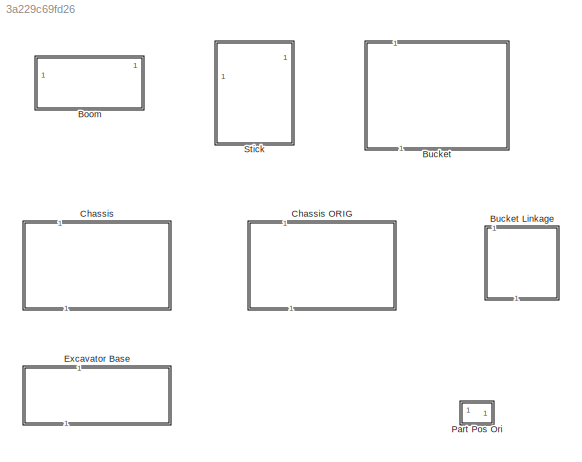
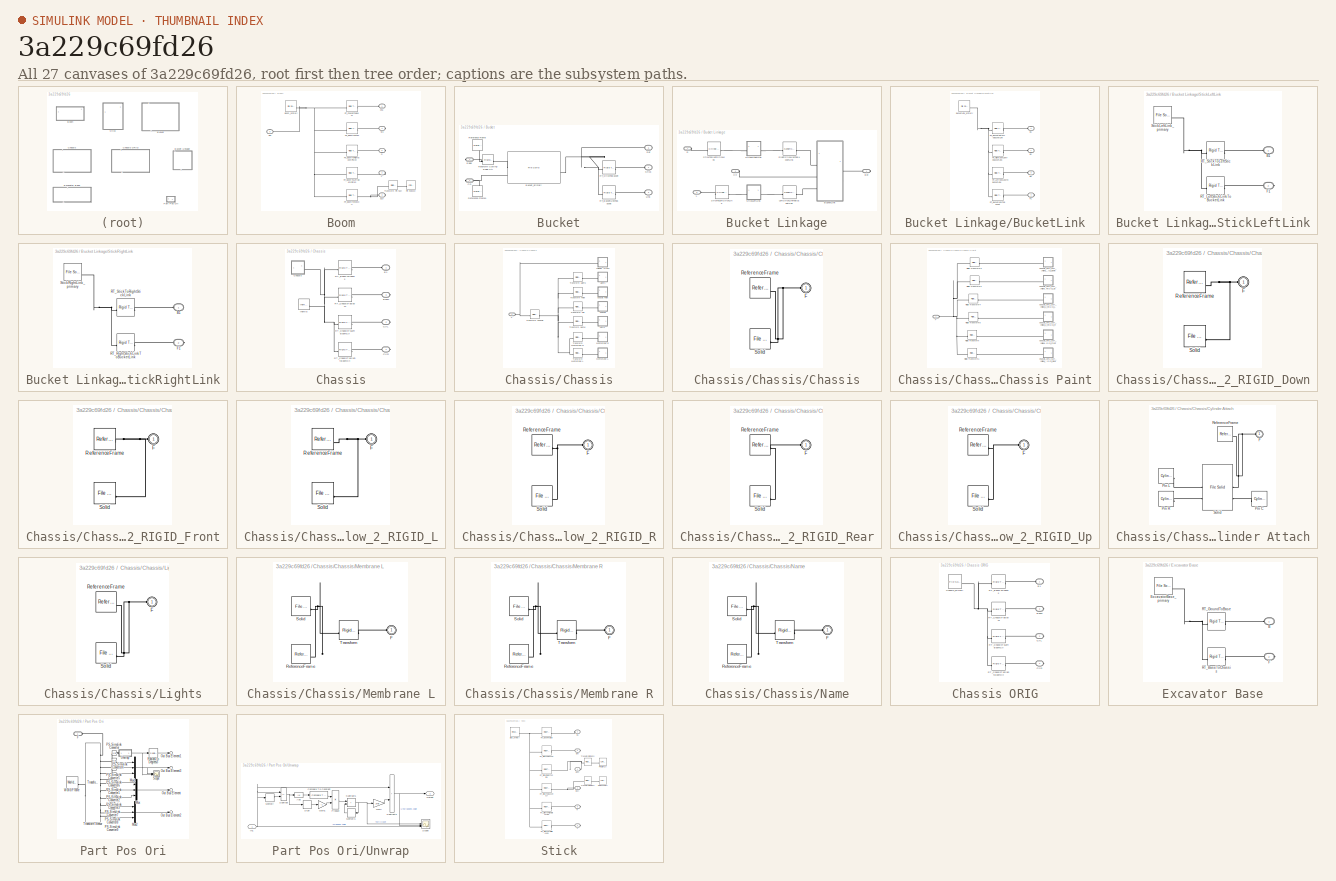
[diagram: thumbnail index - all 27 canvases of the model, root first then tree order]
MODEL slx_3a229c69fd26
KIND library
CONFIG SolverName = VariableStepAuto
BLOCK [SubSystem] Boom
  Tag = FF941BC7-23B6-8A4E-AE2C-D7583C913694
BLOCK [Reference] Boom/Boom_primary  REF=sm_lib/Body Elements/File Solid
  SourceBlock = sm_lib/Body Elements/File Solid
  SourceType = File Solid
BLOCK [PMIOPort] Boom/Cha
  Side = Left
BLOCK [PMIOPort] Boom/L
  Port = 2
  Side = Right
BLOCK [Reference] Boom/Pin StickCyl  REF=sm_lib/Body Elements/Cylindrical Solid
  SourceBlock = sm_lib/Body Elements/Cylindrical Solid
  SourceType = Cylindrical Solid
BLOCK [PMIOPort] Boom/R
  Port = 5
  Side = Right
BLOCK [Reference] Boom/RT_BoomToLeftBoomPiston  REF=sm_lib/Frames and
Transforms/Rigid
Transform
  SourceBlock = sm_lib/Frames and\nTransforms/Rigid\nTransform
  SourceType = Rigid\nTransform
BLOCK [Reference] Boom/RT_BoomToRightBoomPiston  REF=sm_lib/Frames and
Transforms/Rigid
Transform
  SourceBlock = sm_lib/Frames and\nTransforms/Rigid\nTransform
  SourceType = Rigid\nTransform
BLOCK [Reference] Boom/RT_BoomToStick  REF=sm_lib/Frames and
Transforms/Rigid
Transform
  SourceBlock = sm_lib/Frames and\nTransforms/Rigid\nTransform
  SourceType = Rigid\nTransform
BLOCK [Reference] Boom/RT_BoomToStickCyl  REF=sm_lib/Frames and
Transforms/Rigid
Transform
  SourceBlock = sm_lib/Frames and\nTransforms/Rigid\nTransform
  SourceType = Rigid\nTransform
BLOCK [Reference] Boom/RT_ChassisToBoom  REF=sm_lib/Frames and
Transforms/Rigid
Transform
  SourceBlock = sm_lib/Frames and\nTransforms/Rigid\nTransform
  SourceType = Rigid\nTransform
BLOCK [PMIOPort] Boom/Ref
  Port = 6
  Side = Right
BLOCK [PMIOPort] Boom/SCyl
  Port = 3
  Side = Right
BLOCK [PMIOPort] Boom/Stk
  Port = 4
  Side = Right
BLOCK [Reference] Boom/Transform Pin SCyl  REF=sm_lib/Frames and
Transforms/Rigid
Transform
  SourceBlock = sm_lib/Frames and\nTransforms/Rigid\nTransform
  SourceType = Rigid\nTransform
BLOCK [SubSystem] Bucket
  NameLocation = right
  Tag = FF47B028-216B-7042-A7FD-934F60E6CEA6
BLOCK [SubSystem] Bucket Linkage
  NameLocation = right
BLOCK [PMIOPort] Bucket Linkage/Bkt
  Side = Right
BLOCK [SubSystem] Bucket Linkage/BucketLink
  Tag = 8DCE6320-A052-8244-B3A5-A7A50456D327
BLOCK [PMIOPort] Bucket Linkage/BucketLink/B1
  Port = 2
  Side = Left
BLOCK [PMIOPort] Bucket Linkage/BucketLink/B2
  Side = Left
BLOCK [PMIOPort] Bucket Linkage/BucketLink/B3
  Port = 3
  Side = Left
BLOCK [Reference] Bucket Linkage/BucketLink/BucketLink_primary  REF=sm_lib/Body Elements/File Solid
  SourceBlock = sm_lib/Body Elements/File Solid
  SourceType = File Solid
BLOCK [PMIOPort] Bucket Linkage/BucketLink/F1
  Port = 4
  Side = Right
BLOCK [Reference] Bucket Linkage/BucketLink/RT_BucketLinkToBucket  REF=sm_lib/Frames and
Transforms/Rigid
Transform
  SourceBlock = sm_lib/Frames and\nTransforms/Rigid\nTransform
  SourceType = Rigid\nTransform
BLOCK [Reference] Bucket Linkage/BucketLink/RT_BucketPistonToBucketLink  REF=sm_lib/Frames and
Transforms/Rigid
Transform
  SourceBlock = sm_lib/Frames and\nTransforms/Rigid\nTransform
  SourceType = Rigid\nTransform
BLOCK [Reference] Bucket Linkage/BucketLink/RT_LeftStickLinkToBucketLink  REF=sm_lib/Frames and
Transforms/Rigid
Transform
  SourceBlock = sm_lib/Frames and\nTransforms/Rigid\nTransform
  SourceType = Rigid\nTransform
BLOCK [Reference] Bucket Linkage/BucketLink/RT_RightStickLinkToBucketLink  REF=sm_lib/Frames and
Transforms/Rigid
Transform
  SourceBlock = sm_lib/Frames and\nTransforms/Rigid\nTransform
  SourceType = Rigid\nTransform
BLOCK [PMIOPort] Bucket Linkage/Cyl
  Port = 4
  Side = Left
BLOCK [PMIOPort] Bucket Linkage/L
  Port = 3
  Side = Left
BLOCK [Reference] Bucket Linkage/LeftStickLinkToBucketLink  REF=sm_lib/Joints/Spherical
Joint
  SourceBlock = sm_lib/Joints/Spherical\nJoint
  SourceType = Spherical\nJoint
BLOCK [PMIOPort] Bucket Linkage/R
  Port = 2
  Side = Left
BLOCK [Reference] Bucket Linkage/RightStickLinkToBucketLink  REF=sm_lib/Joints/Spherical
Joint
  SourceBlock = sm_lib/Joints/Spherical\nJoint
  SourceType = Spherical\nJoint
BLOCK [SubSystem] Bucket Linkage/StickLeftLink
  Tag = A3A8352F-D85E-864A-96A3-EBEF0A949AEF
BLOCK [PMIOPort] Bucket Linkage/StickLeftLink/B1
  Side = Left
BLOCK [PMIOPort] Bucket Linkage/StickLeftLink/F1
  Port = 2
  Side = Right
BLOCK [Reference] Bucket Linkage/StickLeftLink/RT_LeftStickLinkToBucketLink  REF=sm_lib/Frames and
Transforms/Rigid
Transform
  SourceBlock = sm_lib/Frames and\nTransforms/Rigid\nTransform
  SourceType = Rigid\nTransform
BLOCK [Reference] Bucket Linkage/StickLeftLink/RT_StickToLeftStickLink  REF=sm_lib/Frames and
Transforms/Rigid
Transform
  SourceBlock = sm_lib/Frames and\nTransforms/Rigid\nTransform
  SourceType = Rigid\nTransform
BLOCK [Reference] Bucket Linkage/StickLeftLink/StickLeftLink_primary  REF=sm_lib/Body Elements/File Solid
  SourceBlock = sm_lib/Body Elements/File Solid
  SourceType = File Solid
BLOCK [SubSystem] Bucket Linkage/StickRightLink
  Tag = 98B16C75-5A98-C34E-9328-4E7B9631B689
BLOCK [PMIOPort] Bucket Linkage/StickRightLink/B1
  Side = Left
BLOCK [PMIOPort] Bucket Linkage/StickRightLink/F1
  Port = 2
  Side = Right
BLOCK [Reference] Bucket Linkage/StickRightLink/RT_RightStickLinkToBucketLink  REF=sm_lib/Frames and
Transforms/Rigid
Transform
  SourceBlock = sm_lib/Frames and\nTransforms/Rigid\nTransform
  SourceType = Rigid\nTransform
BLOCK [Reference] Bucket Linkage/StickRightLink/RT_StickToRightStickLink  REF=sm_lib/Frames and
Transforms/Rigid
Transform
  SourceBlock = sm_lib/Frames and\nTransforms/Rigid\nTransform
  SourceType = Rigid\nTransform
BLOCK [Reference] Bucket Linkage/StickRightLink/StickRightLink_primary  REF=sm_lib/Body Elements/File Solid
  SourceBlock = sm_lib/Body Elements/File Solid
  SourceType = File Solid
BLOCK [Reference] Bucket Linkage/StickToLeftStickLink  REF=sm_lib/Joints/Cylindrical
Joint
  SourceBlock = sm_lib/Joints/Cylindrical\nJoint
  SourceType = Cylindrical\nJoint
BLOCK [Reference] Bucket Linkage/StickToRightStickLink  REF=sm_lib/Joints/Cylindrical
Joint
  SourceBlock = sm_lib/Joints/Cylindrical\nJoint
  SourceType = Cylindrical\nJoint
BLOCK [Reference] Bucket/Bucket_primary  REF=sm_lib/Body Elements/File Solid
  SourceBlock = sm_lib/Body Elements/File Solid
  SourceType = File Solid
BLOCK [PMIOPort] Bucket/CG
  Port = 4
  Side = Right
BLOCK [PMIOPort] Bucket/Edge
  Port = 3
  Side = Right
BLOCK [PMIOPort] Bucket/Link
  Port = 2
  Side = Left
BLOCK [Reference] Bucket/RT_BucketLinkToBucket  REF=sm_lib/Frames and
Transforms/Rigid
Transform
  SourceBlock = sm_lib/Frames and\nTransforms/Rigid\nTransform
  SourceType = Rigid\nTransform
BLOCK [Reference] Bucket/RT_StickToBucket  REF=sm_lib/Frames and
Transforms/Rigid
Transform
  SourceBlock = sm_lib/Frames and\nTransforms/Rigid\nTransform
  SourceType = Rigid\nTransform
BLOCK [PMIOPort] Bucket/Ref
  Port = 5
  Side = Right
BLOCK [Reference] Bucket/Reference Frame  REF=sm_lib/Frames and
Transforms/Reference
Frame
  NameLocation = left
  SourceBlock = sm_lib/Frames and\nTransforms/Reference\nFrame
  SourceType = Reference\nFrame
BLOCK [Reference] Bucket/Reference Frame1  REF=sm_lib/Frames and
Transforms/Reference
Frame
  NameLocation = right
  SourceBlock = sm_lib/Frames and\nTransforms/Reference\nFrame
  SourceType = Reference\nFrame
BLOCK [PMIOPort] Bucket/Stick
  Side = Left
BLOCK [Reference] Bucket/Transform Cutting Edge Ctr  REF=sm_lib/Frames and
Transforms/Rigid
Transform
  SourceBlock = sm_lib/Frames and\nTransforms/Rigid\nTransform
  SourceType = Rigid\nTransform
BLOCK [SubSystem] Chassis
  NameLocation = right
  Tag = 19F311DB-9E7A-8F4D-82CB-D8DCD5D4899B
BLOCK [SubSystem] Chassis ORIG
  NameLocation = right
  Tag = 19F311DB-9E7A-8F4D-82CB-D8DCD5D4899B
BLOCK [PMIOPort] Chassis ORIG/B1
  Side = Left
BLOCK [PMIOPort] Chassis ORIG/Boom
  Port = 3
  Side = Right
BLOCK [Reference] Chassis ORIG/Chassis_primary  REF=sm_lib/Body Elements/File Solid
  SourceBlock = sm_lib/Body Elements/File Solid
  SourceType = File Solid
BLOCK [PMIOPort] Chassis ORIG/CylL
  Port = 2
  Side = Right
BLOCK [PMIOPort] Chassis ORIG/CylR
  Port = 4
  Side = Right
BLOCK [Reference] Chassis ORIG/RT_BaseToChassis  REF=sm_lib/Frames and
Transforms/Rigid
Transform
  SourceBlock = sm_lib/Frames and\nTransforms/Rigid\nTransform
  SourceType = Rigid\nTransform
BLOCK [Reference] Chassis ORIG/RT_ChassisToBoom  REF=sm_lib/Frames and
Transforms/Rigid
Transform
  SourceBlock = sm_lib/Frames and\nTransforms/Rigid\nTransform
  SourceType = Rigid\nTransform
BLOCK [Reference] Chassis ORIG/RT_ChassisToLeftBoomCyl  REF=sm_lib/Frames and
Transforms/Rigid
Transform
  SourceBlock = sm_lib/Frames and\nTransforms/Rigid\nTransform
  SourceType = Rigid\nTransform
BLOCK [Reference] Chassis ORIG/RT_ChassisToRightBoomCyl  REF=sm_lib/Frames and
Transforms/Rigid
Transform
  SourceBlock = sm_lib/Frames and\nTransforms/Rigid\nTransform
  SourceType = Rigid\nTransform
BLOCK [PMIOPort] Chassis/B1
  Side = Left
BLOCK [PMIOPort] Chassis/Boom
  Port = 3
  Side = Right
BLOCK [SubSystem] Chassis/Chassis
BLOCK [SubSystem] Chassis/Chassis/Chassis
BLOCK [SubSystem] Chassis/Chassis/Chassis Paint
BLOCK [SubSystem] Chassis/Chassis/Chassis Paint/Chassis_ver2_surf_yellow_2_RIGID_Down
BLOCK [PMIOPort] Chassis/Chassis/Chassis Paint/Chassis_ver2_surf_yellow_2_RIGID_Down/F
  Side = Left
BLOCK [Reference] Chassis/Chassis/Chassis Paint/Chassis_ver2_surf_yellow_2_RIGID_Down/ReferenceFrame  REF=sm_lib/Frames and
Transforms/Reference
Frame
  SourceBlock = sm_lib/Frames and\nTransforms/Reference\nFrame
  SourceType = Reference\nFrame
BLOCK [Reference] Chassis/Chassis/Chassis Paint/Chassis_ver2_surf_yellow_2_RIGID_Down/Solid  REF=sm_lib/Body Elements/File Solid
  SourceBlock = sm_lib/Body Elements/File Solid
  SourceType = File Solid
BLOCK [SubSystem] Chassis/Chassis/Chassis Paint/Chassis_ver2_surf_yellow_2_RIGID_Front
BLOCK [PMIOPort] Chassis/Chassis/Chassis Paint/Chassis_ver2_surf_yellow_2_RIGID_Front/F
  Side = Left
BLOCK [Reference] Chassis/Chassis/Chassis Paint/Chassis_ver2_surf_yellow_2_RIGID_Front/ReferenceFrame  REF=sm_lib/Frames and
Transforms/Reference
Frame
  SourceBlock = sm_lib/Frames and\nTransforms/Reference\nFrame
  SourceType = Reference\nFrame
BLOCK [Reference] Chassis/Chassis/Chassis Paint/Chassis_ver2_surf_yellow_2_RIGID_Front/Solid  REF=sm_lib/Body Elements/File Solid
  SourceBlock = sm_lib/Body Elements/File Solid
  SourceType = File Solid
BLOCK [SubSystem] Chassis/Chassis/Chassis Paint/Chassis_ver2_surf_yellow_2_RIGID_L
BLOCK [PMIOPort] Chassis/Chassis/Chassis Paint/Chassis_ver2_surf_yellow_2_RIGID_L/F
  Side = Left
BLOCK [Reference] Chassis/Chassis/Chassis Paint/Chassis_ver2_surf_yellow_2_RIGID_L/ReferenceFrame  REF=sm_lib/Frames and
Transforms/Reference
Frame
  SourceBlock = sm_lib/Frames and\nTransforms/Reference\nFrame
  SourceType = Reference\nFrame
BLOCK [Reference] Chassis/Chassis/Chassis Paint/Chassis_ver2_surf_yellow_2_RIGID_L/Solid  REF=sm_lib/Body Elements/File Solid
  SourceBlock = sm_lib/Body Elements/File Solid
  SourceType = File Solid
BLOCK [SubSystem] Chassis/Chassis/Chassis Paint/Chassis_ver2_surf_yellow_2_RIGID_R
BLOCK [PMIOPort] Chassis/Chassis/Chassis Paint/Chassis_ver2_surf_yellow_2_RIGID_R/F
  Side = Left
BLOCK [Reference] Chassis/Chassis/Chassis Paint/Chassis_ver2_surf_yellow_2_RIGID_R/ReferenceFrame  REF=sm_lib/Frames and
Transforms/Reference
Frame
  SourceBlock = sm_lib/Frames and\nTransforms/Reference\nFrame
  SourceType = Reference\nFrame
BLOCK [Reference] Chassis/Chassis/Chassis Paint/Chassis_ver2_surf_yellow_2_RIGID_R/Solid  REF=sm_lib/Body Elements/File Solid
  SourceBlock = sm_lib/Body Elements/File Solid
  SourceType = File Solid
BLOCK [SubSystem] Chassis/Chassis/Chassis Paint/Chassis_ver2_surf_yellow_2_RIGID_Rear
BLOCK [PMIOPort] Chassis/Chassis/Chassis Paint/Chassis_ver2_surf_yellow_2_RIGID_Rear/F
  Side = Left
BLOCK [Reference] Chassis/Chassis/Chassis Paint/Chassis_ver2_surf_yellow_2_RIGID_Rear/ReferenceFrame  REF=sm_lib/Frames and
Transforms/Reference
Frame
  SourceBlock = sm_lib/Frames and\nTransforms/Reference\nFrame
  SourceType = Reference\nFrame
BLOCK [Reference] Chassis/Chassis/Chassis Paint/Chassis_ver2_surf_yellow_2_RIGID_Rear/Solid  REF=sm_lib/Body Elements/File Solid
  SourceBlock = sm_lib/Body Elements/File Solid
  SourceType = File Solid
BLOCK [SubSystem] Chassis/Chassis/Chassis Paint/Chassis_ver2_surf_yellow_2_RIGID_Up
BLOCK [PMIOPort] Chassis/Chassis/Chassis Paint/Chassis_ver2_surf_yellow_2_RIGID_Up/F
  Side = Left
BLOCK [Reference] Chassis/Chassis/Chassis Paint/Chassis_ver2_surf_yellow_2_RIGID_Up/ReferenceFrame  REF=sm_lib/Frames and
Transforms/Reference
Frame
  SourceBlock = sm_lib/Frames and\nTransforms/Reference\nFrame
  SourceType = Reference\nFrame
BLOCK [Reference] Chassis/Chassis/Chassis Paint/Chassis_ver2_surf_yellow_2_RIGID_Up/Solid  REF=sm_lib/Body Elements/File Solid
  SourceBlock = sm_lib/Body Elements/File Solid
  SourceType = File Solid
BLOCK [PMIOPort] Chassis/Chassis/Chassis Paint/F
  Side = Left
BLOCK [Reference] Chassis/Chassis/Chassis Paint/Rigid Transform  REF=sm_lib/Frames and
Transforms/Rigid
Transform
  SourceBlock = sm_lib/Frames and\nTransforms/Rigid\nTransform
  SourceType = Rigid\nTransform
BLOCK [Reference] Chassis/Chassis/Chassis Paint/Rigid Transform1  REF=sm_lib/Frames and
Transforms/Rigid
Transform
  SourceBlock = sm_lib/Frames and\nTransforms/Rigid\nTransform
  SourceType = Rigid\nTransform
BLOCK [Reference] Chassis/Chassis/Chassis Paint/Rigid Transform2  REF=sm_lib/Frames and
Transforms/Rigid
Transform
  SourceBlock = sm_lib/Frames and\nTransforms/Rigid\nTransform
  SourceType = Rigid\nTransform
BLOCK [Reference] Chassis/Chassis/Chassis Paint/Rigid Transform3  REF=sm_lib/Frames and
Transforms/Rigid
Transform
  SourceBlock = sm_lib/Frames and\nTransforms/Rigid\nTransform
  SourceType = Rigid\nTransform
BLOCK [Reference] Chassis/Chassis/Chassis Paint/Rigid Transform4  REF=sm_lib/Frames and
Transforms/Rigid
Transform
  SourceBlock = sm_lib/Frames and\nTransforms/Rigid\nTransform
  SourceType = Rigid\nTransform
BLOCK [Reference] Chassis/Chassis/Chassis Paint/Rigid Transform5  REF=sm_lib/Frames and
Transforms/Rigid
Transform
  SourceBlock = sm_lib/Frames and\nTransforms/Rigid\nTransform
  SourceType = Rigid\nTransform
BLOCK [PMIOPort] Chassis/Chassis/Chassis/F
  Side = Left
BLOCK [Reference] Chassis/Chassis/Chassis/ReferenceFrame  REF=sm_lib/Frames and
Transforms/Reference
Frame
  SourceBlock = sm_lib/Frames and\nTransforms/Reference\nFrame
  SourceType = Reference\nFrame
BLOCK [Reference] Chassis/Chassis/Chassis/Solid  REF=sm_lib/Body Elements/File Solid
  SourceBlock = sm_lib/Body Elements/File Solid
  SourceType = File Solid
BLOCK [SubSystem] Chassis/Chassis/Cylinder Attach
BLOCK [PMIOPort] Chassis/Chassis/Cylinder Attach/F
  Side = Left
BLOCK [Reference] Chassis/Chassis/Cylinder Attach/Pin C  REF=sm_lib/Body Elements/Cylindrical Solid
  SourceBlock = sm_lib/Body Elements/Cylindrical Solid
  SourceType = Cylindrical Solid
BLOCK [Reference] Chassis/Chassis/Cylinder Attach/Pin L  REF=sm_lib/Body Elements/Cylindrical Solid
  NameLocation = top
  SourceBlock = sm_lib/Body Elements/Cylindrical Solid
  SourceType = Cylindrical Solid
BLOCK [Reference] Chassis/Chassis/Cylinder Attach/Pin R  REF=sm_lib/Body Elements/Cylindrical Solid
  NameLocation = top
  SourceBlock = sm_lib/Body Elements/Cylindrical Solid
  SourceType = Cylindrical Solid
BLOCK [Reference] Chassis/Chassis/Cylinder Attach/ReferenceFrame  REF=sm_lib/Frames and
Transforms/Reference
Frame
  SourceBlock = sm_lib/Frames and\nTransforms/Reference\nFrame
  SourceType = Reference\nFrame
BLOCK [Reference] Chassis/Chassis/Cylinder Attach/Solid  REF=sm_lib/Body Elements/File Solid
  SourceBlock = sm_lib/Body Elements/File Solid
  SourceType = File Solid
BLOCK [PMIOPort] Chassis/Chassis/F
  Side = Left
BLOCK [SubSystem] Chassis/Chassis/Lights
BLOCK [PMIOPort] Chassis/Chassis/Lights/F
  Side = Left
BLOCK [Reference] Chassis/Chassis/Lights/ReferenceFrame  REF=sm_lib/Frames and
Transforms/Reference
Frame
  SourceBlock = sm_lib/Frames and\nTransforms/Reference\nFrame
  SourceType = Reference\nFrame
BLOCK [Reference] Chassis/Chassis/Lights/Solid  REF=sm_lib/Body Elements/File Solid
  SourceBlock = sm_lib/Body Elements/File Solid
  SourceType = File Solid
BLOCK [SubSystem] Chassis/Chassis/Membrane L
BLOCK [PMIOPort] Chassis/Chassis/Membrane L/F
  Side = Left
BLOCK [Reference] Chassis/Chassis/Membrane L/ReferenceFrame  REF=sm_lib/Frames and
Transforms/Reference
Frame
  SourceBlock = sm_lib/Frames and\nTransforms/Reference\nFrame
  SourceType = Reference\nFrame
BLOCK [Reference] Chassis/Chassis/Membrane L/Solid  REF=sm_lib/Body Elements/File Solid
  SourceBlock = sm_lib/Body Elements/File Solid
  SourceType = File Solid
BLOCK [Reference] Chassis/Chassis/Membrane L/Transform  REF=sm_lib/Frames and
Transforms/Rigid
Transform
  SourceBlock = sm_lib/Frames and\nTransforms/Rigid\nTransform
  SourceType = Rigid\nTransform
BLOCK [SubSystem] Chassis/Chassis/Membrane R
BLOCK [PMIOPort] Chassis/Chassis/Membrane R/F
  Side = Left
BLOCK [Reference] Chassis/Chassis/Membrane R/ReferenceFrame  REF=sm_lib/Frames and
Transforms/Reference
Frame
  SourceBlock = sm_lib/Frames and\nTransforms/Reference\nFrame
  SourceType = Reference\nFrame
BLOCK [Reference] Chassis/Chassis/Membrane R/Solid  REF=sm_lib/Body Elements/File Solid
  SourceBlock = sm_lib/Body Elements/File Solid
  SourceType = File Solid
BLOCK [Reference] Chassis/Chassis/Membrane R/Transform  REF=sm_lib/Frames and
Transforms/Rigid
Transform
  SourceBlock = sm_lib/Frames and\nTransforms/Rigid\nTransform
  SourceType = Rigid\nTransform
BLOCK [SubSystem] Chassis/Chassis/Name
BLOCK [PMIOPort] Chassis/Chassis/Name/F
  Side = Left
BLOCK [Reference] Chassis/Chassis/Name/ReferenceFrame  REF=sm_lib/Frames and
Transforms/Reference
Frame
  SourceBlock = sm_lib/Frames and\nTransforms/Reference\nFrame
  SourceType = Reference\nFrame
BLOCK [Reference] Chassis/Chassis/Name/Solid  REF=sm_lib/Body Elements/File Solid
  SourceBlock = sm_lib/Body Elements/File Solid
  SourceType = File Solid
BLOCK [Reference] Chassis/Chassis/Name/Transform  REF=sm_lib/Frames and
Transforms/Rigid
Transform
  SourceBlock = sm_lib/Frames and\nTransforms/Rigid\nTransform
  SourceType = Rigid\nTransform
BLOCK [Reference] Chassis/Chassis/Transform Chassis  REF=sm_lib/Frames and
Transforms/Rigid
Transform
  SourceBlock = sm_lib/Frames and\nTransforms/Rigid\nTransform
  SourceType = Rigid\nTransform
BLOCK [Reference] Chassis/Chassis/Transform Hull  REF=sm_lib/Frames and
Transforms/Rigid
Transform
  SourceBlock = sm_lib/Frames and\nTransforms/Rigid\nTransform
  SourceType = Rigid\nTransform
BLOCK [Reference] Chassis/Chassis/Transform Lights  REF=sm_lib/Frames and
Transforms/Rigid
Transform
  SourceBlock = sm_lib/Frames and\nTransforms/Rigid\nTransform
  SourceType = Rigid\nTransform
BLOCK [Reference] Chassis/Chassis/Transform Membrane L  REF=sm_lib/Frames and
Transforms/Rigid
Transform
  SourceBlock = sm_lib/Frames and\nTransforms/Rigid\nTransform
  SourceType = Rigid\nTransform
BLOCK [Reference] Chassis/Chassis/Transform Membrane R  REF=sm_lib/Frames and
Transforms/Rigid
Transform
  SourceBlock = sm_lib/Frames and\nTransforms/Rigid\nTransform
  SourceType = Rigid\nTransform
BLOCK [Reference] Chassis/Chassis/Transform Name  REF=sm_lib/Frames and
Transforms/Rigid
Transform
  SourceBlock = sm_lib/Frames and\nTransforms/Rigid\nTransform
  SourceType = Rigid\nTransform
BLOCK [Reference] Chassis/Chassis/Transform Paint  REF=sm_lib/Frames and
Transforms/Rigid
Transform
  SourceBlock = sm_lib/Frames and\nTransforms/Rigid\nTransform
  SourceType = Rigid\nTransform
BLOCK [PMIOPort] Chassis/CylL
  Port = 2
  Side = Right
BLOCK [PMIOPort] Chassis/CylR
  Port = 4
  Side = Right
BLOCK [Reference] Chassis/Inertia  REF=sm_lib/Body Elements/Inertia
  SourceBlock = sm_lib/Body Elements/Inertia
  SourceType = Inertia
BLOCK [Reference] Chassis/RT_BaseToChassis  REF=sm_lib/Frames and
Transforms/Rigid
Transform
  SourceBlock = sm_lib/Frames and\nTransforms/Rigid\nTransform
  SourceType = Rigid\nTransform
BLOCK [Reference] Chassis/RT_ChassisToBoom  REF=sm_lib/Frames and
Transforms/Rigid
Transform
  SourceBlock = sm_lib/Frames and\nTransforms/Rigid\nTransform
  SourceType = Rigid\nTransform
BLOCK [Reference] Chassis/RT_ChassisToLeftBoomCyl  REF=sm_lib/Frames and
Transforms/Rigid
Transform
  SourceBlock = sm_lib/Frames and\nTransforms/Rigid\nTransform
  SourceType = Rigid\nTransform
BLOCK [Reference] Chassis/RT_ChassisToRightBoomCyl  REF=sm_lib/Frames and
Transforms/Rigid
Transform
  SourceBlock = sm_lib/Frames and\nTransforms/Rigid\nTransform
  SourceType = Rigid\nTransform
BLOCK [SubSystem] Excavator Base
  NameLocation = right
  Tag = AAA55596-1DB0-4345-9724-6685E48489E2
BLOCK [PMIOPort] Excavator Base/B
  Side = Left
BLOCK [Reference] Excavator Base/ExcavatorBase_primary  REF=sm_lib/Body Elements/File Solid
  SourceBlock = sm_lib/Body Elements/File Solid
  SourceType = File Solid
BLOCK [PMIOPort] Excavator Base/F
  Port = 2
  Side = Right
BLOCK [Reference] Excavator Base/RT_BaseToChassis  REF=sm_lib/Frames and
Transforms/Rigid
Transform
  SourceBlock = sm_lib/Frames and\nTransforms/Rigid\nTransform
  SourceType = Rigid\nTransform
BLOCK [Reference] Excavator Base/RT_GroundToBase  REF=sm_lib/Frames and
Transforms/Rigid
Transform
  SourceBlock = sm_lib/Frames and\nTransforms/Rigid\nTransform
  SourceType = Rigid\nTransform
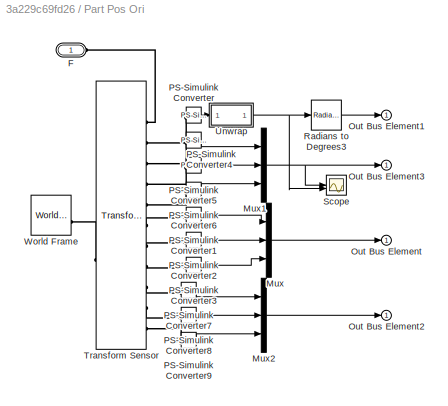
BLOCK [SubSystem] Part Pos Ori
BLOCK [PMIOPort] Part Pos Ori/F
  Side = Left
BLOCK [Mux] Part Pos Ori/Mux
  DisplayOption = bar
  Inputs = 3
BLOCK [Mux] Part Pos Ori/Mux1
  DisplayOption = bar
  Inputs = 3
BLOCK [Mux] Part Pos Ori/Mux2
  DisplayOption = bar
  Inputs = 3
BLOCK [Outport] Part Pos Ori/Out Bus Element
BLOCK [Outport] Part Pos Ori/Out Bus Element1
BLOCK [Outport] Part Pos Ori/Out Bus Element2
BLOCK [Outport] Part Pos Ori/Out Bus Element3
BLOCK [Reference] Part Pos Ori/PS-Simulink Converter  REF=nesl_utility/PS-Simulink
Converter
  SourceBlock = nesl_utility/PS-Simulink\nConverter
  SourceType = PS-Simulink\nConverter
BLOCK [Reference] Part Pos Ori/PS-Simulink Converter1  REF=nesl_utility/PS-Simulink
Converter
  SourceBlock = nesl_utility/PS-Simulink\nConverter
  SourceType = PS-Simulink\nConverter
BLOCK [Reference] Part Pos Ori/PS-Simulink Converter2  REF=nesl_utility/PS-Simulink
Converter
  SourceBlock = nesl_utility/PS-Simulink\nConverter
  SourceType = PS-Simulink\nConverter
BLOCK [Reference] Part Pos Ori/PS-Simulink Converter3  REF=nesl_utility/PS-Simulink
Converter
  SourceBlock = nesl_utility/PS-Simulink\nConverter
  SourceType = PS-Simulink\nConverter
BLOCK [Reference] Part Pos Ori/PS-Simulink Converter4  REF=nesl_utility/PS-Simulink
Converter
  SourceBlock = nesl_utility/PS-Simulink\nConverter
  SourceType = PS-Simulink\nConverter
BLOCK [Reference] Part Pos Ori/PS-Simulink Converter5  REF=nesl_utility/PS-Simulink
Converter
  SourceBlock = nesl_utility/PS-Simulink\nConverter
  SourceType = PS-Simulink\nConverter
BLOCK [Reference] Part Pos Ori/PS-Simulink Converter6  REF=nesl_utility/PS-Simulink
Converter
  SourceBlock = nesl_utility/PS-Simulink\nConverter
  SourceType = PS-Simulink\nConverter
BLOCK [Reference] Part Pos Ori/PS-Simulink Converter7  REF=nesl_utility/PS-Simulink
Converter
  SourceBlock = nesl_utility/PS-Simulink\nConverter
  SourceType = PS-Simulink\nConverter
BLOCK [Reference] Part Pos Ori/PS-Simulink Converter8  REF=nesl_utility/PS-Simulink
Converter
  SourceBlock = nesl_utility/PS-Simulink\nConverter
  SourceType = PS-Simulink\nConverter
BLOCK [Reference] Part Pos Ori/PS-Simulink Converter9  REF=nesl_utility/PS-Simulink
Converter
  SourceBlock = nesl_utility/PS-Simulink\nConverter
  SourceType = PS-Simulink\nConverter
BLOCK [Reference] Part Pos Ori/Radians to Degrees3  REF=simulink_extras/Transformations/Radians
to Degrees
  SourceBlock = simulink_extras/Transformations/Radians\nto Degrees
  SourceType = RadiansToDegrees
BLOCK [Scope] Part Pos Ori/Scope
  ActiveDisplayYMaximum = 0.93117
  ActiveDisplayYMinimum = -1.96597
  DataLoggingVariableName = ScopeData2
  Floating = off
  GraphicalSettings = {"GraphicalSettings":{"LegacySettings":true,"Style":{"Style":{"AxesColor":"[0 0 0]","ChannelNames":["",""],"ColorOrder":"[1 0.909803921568627 0.392156862745098;0.149019607843137 0.549019607843137 0.866666666666667;0.96078431372549 0.466666666666667 0.16078431372549;0.286274509803922 0.858823529411765 0.250980392156863;0.752941176470588 0.36078431372549 0.984313725490196;0.423529411764706 0.9568627...<+488ch>
  LayoutDimensionsString = [2 1]
  MultipleDisplayCache = [{"MaxYLimMag":1.96597,"MaxYLimReal":0.93117,"MinYLimMag":0,"MinYLimReal":-1.96597,"PlotAsMagnitudePhase":false,"ShowGrid":true,"ShowLegend":false,"Title":"%<SignalLabel>","YLabel":""},{"MaxYLimMag":10,"MaxYLimReal":2.23555,"MinYLimMag":0,"MinYLimReal":-4.10914,"PlotAsMagnitudePhase":false,"ShowGrid":true,"ShowLegend":false,"Title":"%<SignalLabel>","YLabel":""}]
  NumInputPorts = 2
  WasSavedAsWebScope = on
  WindowPosition = [990 358 560 420]
BLOCK [Reference] Part Pos Ori/Transform Sensor  REF=sm_lib/Frames and
Transforms/Transform
Sensor
  SourceBlock = sm_lib/Frames and\nTransforms/Transform\nSensor
  SourceType = Transform\nSensor
BLOCK [SubSystem] Part Pos Ori/Unwrap
  NameLocation = top
BLOCK [Abs] Part Pos Ori/Unwrap/Abs
  SaturateOnIntegerOverflow = off
  ZeroCross = off
BLOCK [Reference] Part Pos Ori/Unwrap/Compare To Constant  REF=simulink/Logic and Bit
Operations/Compare
To Constant
  SourceBlock = simulink/Logic and Bit\nOperations/Compare\nTo Constant
  SourceType = Compare To Constant
BLOCK [Gain] Part Pos Ori/Unwrap/Gain
  Gain = 2*pi
BLOCK [Gain] Part Pos Ori/Unwrap/Gain1
  Gain = -1
BLOCK [Inport] Part Pos Ori/Unwrap/In1
BLOCK [Memory] Part Pos Ori/Unwrap/Memory
BLOCK [Memory] Part Pos Ori/Unwrap/Memory1
BLOCK [Outport] Part Pos Ori/Unwrap/Output
BLOCK [Product] Part Pos Ori/Unwrap/Product
BLOCK [Scope] Part Pos Ori/Unwrap/Scope
  ActiveDisplayYMaximum = 0.125
  ActiveDisplayYMinimum = -1.125
  DataLoggingVariableName = ScopeData1
  Floating = off
  GraphicalSettings = {"GraphicalSettings":{"LegacySettings":true,"Style":{"AxesScalingProperties":{"ScaleAxesLimitsAtStop":false},"Style":{"AxesColor":"[0 0 0]","ChannelNames":["","",""],"ColorOrder":"[1 0.909803921568627 0.392156862745098;0.149019607843137 0.549019607843137 0.866666666666667;0.96078431372549 0.466666666666667 0.16078431372549;0.286274509803922 0.858823529411765 0.250980392156863;0.752941176470588 0.3...<+550ch>
  LayoutDimensionsString = [3 1]
  MultipleDisplayCache = [{"MaxYLimMag":1.125,"MaxYLimReal":0.125,"MinYLimMag":0,"MinYLimReal":-1.125,"PlotAsMagnitudePhase":false,"ShowGrid":true,"ShowLegend":false,"Title":"%<SignalLabel>","YLabel":""},{"MaxYLimMag":129.35513,"MaxYLimReal":217.93142,"MinYLimMag":0,"MinYLimReal":-224.2146,"PlotAsMagnitudePhase":false,"ShowGrid":true,"ShowLegend":false,"Title":"%<SignalLabel>","YLabel":""},{"MaxYLimMag":129.35513,"MaxYLim...<+146ch>
  NumInputPorts = 3
  WasSavedAsWebScope = on
  WindowPosition = [990 331 403 447]
BLOCK [Signum] Part Pos Ori/Unwrap/Sign
  ZeroCross = off
BLOCK [Sum] Part Pos Ori/Unwrap/Subtract
  IconShape = rectangular
  Inputs = +-
BLOCK [Sum] Part Pos Ori/Unwrap/Subtract1
  IconShape = rectangular
BLOCK [Sum] Part Pos Ori/Unwrap/Subtract2
  IconShape = rectangular
BLOCK [Reference] Part Pos Ori/World Frame  REF=sm_lib/Frames and
Transforms/World Frame
  SourceBlock = sm_lib/Frames and\nTransforms/World Frame
  SourceType = World Frame
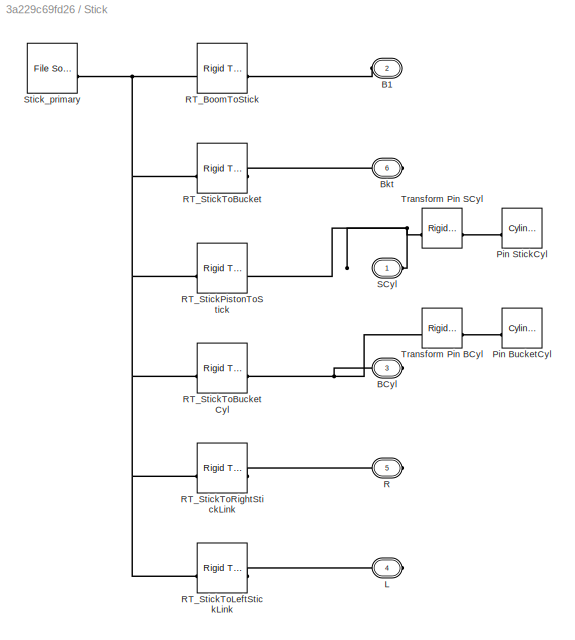
BLOCK [SubSystem] Stick
  Tag = 62A93771-C790-5E4F-BFD2-96C4D317E04B
BLOCK [PMIOPort] Stick/B1
  Port = 2
  Side = Left
BLOCK [PMIOPort] Stick/BCyl
  Port = 3
  Side = Right
BLOCK [PMIOPort] Stick/Bkt
  Port = 6
  Side = Right
BLOCK [PMIOPort] Stick/L
  Port = 4
  Side = Right
BLOCK [Reference] Stick/Pin BucketCyl  REF=sm_lib/Body Elements/Cylindrical Solid
  SourceBlock = sm_lib/Body Elements/Cylindrical Solid
  SourceType = Cylindrical Solid
BLOCK [Reference] Stick/Pin StickCyl  REF=sm_lib/Body Elements/Cylindrical Solid
  SourceBlock = sm_lib/Body Elements/Cylindrical Solid
  SourceType = Cylindrical Solid
BLOCK [PMIOPort] Stick/R
  Port = 5
  Side = Right
BLOCK [Reference] Stick/RT_BoomToStick  REF=sm_lib/Frames and
Transforms/Rigid
Transform
  SourceBlock = sm_lib/Frames and\nTransforms/Rigid\nTransform
  SourceType = Rigid\nTransform
BLOCK [Reference] Stick/RT_StickPistonToStick  REF=sm_lib/Frames and
Transforms/Rigid
Transform
  SourceBlock = sm_lib/Frames and\nTransforms/Rigid\nTransform
  SourceType = Rigid\nTransform
BLOCK [Reference] Stick/RT_StickToBucket  REF=sm_lib/Frames and
Transforms/Rigid
Transform
  SourceBlock = sm_lib/Frames and\nTransforms/Rigid\nTransform
  SourceType = Rigid\nTransform
BLOCK [Reference] Stick/RT_StickToBucketCyl  REF=sm_lib/Frames and
Transforms/Rigid
Transform
  SourceBlock = sm_lib/Frames and\nTransforms/Rigid\nTransform
  SourceType = Rigid\nTransform
BLOCK [Reference] Stick/RT_StickToLeftStickLink  REF=sm_lib/Frames and
Transforms/Rigid
Transform
  SourceBlock = sm_lib/Frames and\nTransforms/Rigid\nTransform
  SourceType = Rigid\nTransform
BLOCK [Reference] Stick/RT_StickToRightStickLink  REF=sm_lib/Frames and
Transforms/Rigid
Transform
  SourceBlock = sm_lib/Frames and\nTransforms/Rigid\nTransform
  SourceType = Rigid\nTransform
BLOCK [PMIOPort] Stick/SCyl
  Side = Right
BLOCK [Reference] Stick/Stick_primary  REF=sm_lib/Body Elements/File Solid
  SourceBlock = sm_lib/Body Elements/File Solid
  SourceType = File Solid
BLOCK [Reference] Stick/Transform Pin BCyl  REF=sm_lib/Frames and
Transforms/Rigid
Transform
  SourceBlock = sm_lib/Frames and\nTransforms/Rigid\nTransform
  SourceType = Rigid\nTransform
BLOCK [Reference] Stick/Transform Pin SCyl  REF=sm_lib/Frames and
Transforms/Rigid
Transform
  SourceBlock = sm_lib/Frames and\nTransforms/Rigid\nTransform
  SourceType = Rigid\nTransform
NET Part Pos Ori/Mux1:1 -> Part Pos Ori/Out Bus Element3:1, Part Pos Ori/Scope:1
LINE Part Pos Ori/Mux2:1 -> Part Pos Ori/Out Bus Element2:1
LINE Part Pos Ori/Mux:1 -> Part Pos Ori/Out Bus Element:1
LINE Part Pos Ori/PS-Simulink Converter1:1 -> Part Pos Ori/Mux:1
LINE Part Pos Ori/PS-Simulink Converter2:1 -> Part Pos Ori/Mux:2
LINE Part Pos Ori/PS-Simulink Converter3:1 -> Part Pos Ori/Mux:3
LINE Part Pos Ori/PS-Simulink Converter4:1 -> Part Pos Ori/Mux1:1
LINE Part Pos Ori/PS-Simulink Converter5:1 -> Part Pos Ori/Mux1:2
LINE Part Pos Ori/PS-Simulink Converter6:1 -> Part Pos Ori/Mux1:3
LINE Part Pos Ori/PS-Simulink Converter7:1 -> Part Pos Ori/Mux2:1
LINE Part Pos Ori/PS-Simulink Converter8:1 -> Part Pos Ori/Mux2:2
LINE Part Pos Ori/PS-Simulink Converter9:1 -> Part Pos Ori/Mux2:3
LINE Part Pos Ori/PS-Simulink Converter:1 -> Part Pos Ori/Unwrap:1
LINE Part Pos Ori/Radians to Degrees3:1 -> Part Pos Ori/Out Bus Element1:1
LINE Part Pos Ori/Unwrap/Abs:1 -> Part Pos Ori/Unwrap/Compare To Constant:1
LINE Part Pos Ori/Unwrap/Compare To Constant:1 -> Part Pos Ori/Unwrap/Product:1
LINE Part Pos Ori/Unwrap/Gain1:1 -> Part Pos Ori/Unwrap/Product:2
LINE Part Pos Ori/Unwrap/Gain:1 -> Part Pos Ori/Unwrap/Subtract2:2
NET Part Pos Ori/Unwrap/In1:1 -> Part Pos Ori/Unwrap/Memory:1, Part Pos Ori/Unwrap/Scope:3, Part Pos Ori/Unwrap/Subtract2:1, Part Pos Ori/Unwrap/Subtract:1
LINE Part Pos Ori/Unwrap/Memory1:1 -> Part Pos Ori/Unwrap/Subtract1:2
LINE Part Pos Ori/Unwrap/Memory:1 -> Part Pos Ori/Unwrap/Subtract:2
LINE Part Pos Ori/Unwrap/Product:1 -> Part Pos Ori/Unwrap/Subtract1:1
LINE Part Pos Ori/Unwrap/Sign:1 -> Part Pos Ori/Unwrap/Gain1:1
NET Part Pos Ori/Unwrap/Subtract1:1 -> Part Pos Ori/Unwrap/Gain:1, Part Pos Ori/Unwrap/Memory1:1, Part Pos Ori/Unwrap/Scope:1
NET Part Pos Ori/Unwrap/Subtract2:1 -> Part Pos Ori/Unwrap/Output:1, Part Pos Ori/Unwrap/Scope:2
NET Part Pos Ori/Unwrap/Subtract:1 -> Part Pos Ori/Unwrap/Abs:1, Part Pos Ori/Unwrap/Sign:1
NET Part Pos Ori/Unwrap:1 -> Part Pos Ori/Radians to Degrees3:1, Part Pos Ori/Scope:2
PNET net1: Boom/Boom_primary:RConn1 -- Boom/RT_BoomToLeftBoomPiston:LConn1 -- Boom/RT_BoomToRightBoomPiston:LConn1 -- Boom/RT_BoomToStick:LConn1 -- Boom/RT_BoomToStickCyl:LConn1 -- Boom/RT_ChassisToBoom:LConn1 -- Boom/Ref:RConn1
PLINE Boom/Cha:RConn1 -- Boom/RT_ChassisToBoom:RConn1
PLINE Boom/L:RConn1 -- Boom/RT_BoomToLeftBoomPiston:RConn1
PLINE Boom/Pin StickCyl:RConn1 -- Boom/Transform Pin SCyl:RConn1
PLINE Boom/R:RConn1 -- Boom/RT_BoomToRightBoomPiston:RConn1
PLINE Boom/RT_BoomToStick:RConn1 -- Boom/Stk:RConn1
PNET net2: Boom/RT_BoomToStickCyl:RConn1 -- Boom/SCyl:RConn1 -- Boom/Transform Pin SCyl:LConn1
PLINE Bucket Linkage/Bkt:RConn1 -- Bucket Linkage/BucketLink:RConn1
PLINE Bucket Linkage/BucketLink/B1:RConn1 -- Bucket Linkage/BucketLink/RT_BucketPistonToBucketLink:RConn1
PLINE Bucket Linkage/BucketLink/B2:RConn1 -- Bucket Linkage/BucketLink/RT_RightStickLinkToBucketLink:RConn1
PLINE Bucket Linkage/BucketLink/B3:RConn1 -- Bucket Linkage/BucketLink/RT_LeftStickLinkToBucketLink:RConn1
PNET net3: Bucket Linkage/BucketLink/BucketLink_primary:RConn1 -- Bucket Linkage/BucketLink/RT_BucketLinkToBucket:LConn1 -- Bucket Linkage/BucketLink/RT_BucketPistonToBucketLink:LConn1 -- Bucket Linkage/BucketLink/RT_LeftStickLinkToBucketLink:LConn1 -- Bucket Linkage/BucketLink/RT_RightStickLinkToBucketLink:LConn1
PLINE Bucket Linkage/BucketLink/F1:RConn1 -- Bucket Linkage/BucketLink/RT_BucketLinkToBucket:RConn1
PLINE Bucket Linkage/BucketLink:LConn1 -- Bucket Linkage/RightStickLinkToBucketLink:RConn1
PLINE Bucket Linkage/BucketLink:LConn2 -- Bucket Linkage/Cyl:RConn1
PLINE Bucket Linkage/BucketLink:LConn3 -- Bucket Linkage/LeftStickLinkToBucketLink:RConn1
PLINE Bucket Linkage/L:RConn1 -- Bucket Linkage/StickToLeftStickLink:LConn1
PLINE Bucket Linkage/LeftStickLinkToBucketLink:LConn1 -- Bucket Linkage/StickLeftLink:RConn1
PLINE Bucket Linkage/R:RConn1 -- Bucket Linkage/StickToRightStickLink:LConn1
PLINE Bucket Linkage/RightStickLinkToBucketLink:LConn1 -- Bucket Linkage/StickRightLink:RConn1
PLINE Bucket Linkage/StickLeftLink/B1:RConn1 -- Bucket Linkage/StickLeftLink/RT_StickToLeftStickLink:RConn1
PLINE Bucket Linkage/StickLeftLink/F1:RConn1 -- Bucket Linkage/StickLeftLink/RT_LeftStickLinkToBucketLink:RConn1
PNET net4: Bucket Linkage/StickLeftLink/RT_LeftStickLinkToBucketLink:LConn1 -- Bucket Linkage/StickLeftLink/RT_StickToLeftStickLink:LConn1 -- Bucket Linkage/StickLeftLink/StickLeftLink_primary:RConn1
PLINE Bucket Linkage/StickLeftLink:LConn1 -- Bucket Linkage/StickToLeftStickLink:RConn1
PLINE Bucket Linkage/StickRightLink/B1:RConn1 -- Bucket Linkage/StickRightLink/RT_StickToRightStickLink:RConn1
PLINE Bucket Linkage/StickRightLink/F1:RConn1 -- Bucket Linkage/StickRightLink/RT_RightStickLinkToBucketLink:RConn1
PNET net5: Bucket Linkage/StickRightLink/RT_RightStickLinkToBucketLink:LConn1 -- Bucket Linkage/StickRightLink/RT_StickToRightStickLink:LConn1 -- Bucket Linkage/StickRightLink/StickRightLink_primary:RConn1
PLINE Bucket Linkage/StickRightLink:LConn1 -- Bucket Linkage/StickToRightStickLink:RConn1
PLINE Bucket/Bucket_primary:LConn1 -- Bucket/Transform Cutting Edge Ctr:LConn1
PNET net6: Bucket/Bucket_primary:LConn2 -- Bucket/CG:RConn1 -- Bucket/Reference Frame1:RConn1
PNET net7: Bucket/Bucket_primary:RConn1 -- Bucket/RT_BucketLinkToBucket:LConn1 -- Bucket/RT_StickToBucket:LConn1 -- Bucket/Ref:RConn1
PNET net8: Bucket/Edge:RConn1 -- Bucket/Reference Frame:RConn1 -- Bucket/Transform Cutting Edge Ctr:RConn1
PLINE Bucket/Link:RConn1 -- Bucket/RT_BucketLinkToBucket:RConn1
PLINE Bucket/RT_StickToBucket:RConn1 -- Bucket/Stick:RConn1
PLINE Chassis ORIG/B1:RConn1 -- Chassis ORIG/RT_BaseToChassis:RConn1
PLINE Chassis ORIG/Boom:RConn1 -- Chassis ORIG/RT_ChassisToBoom:RConn1
PNET net9: Chassis ORIG/Chassis_primary:RConn1 -- Chassis ORIG/RT_BaseToChassis:LConn1 -- Chassis ORIG/RT_ChassisToBoom:LConn1 -- Chassis ORIG/RT_ChassisToLeftBoomCyl:LConn1 -- Chassis ORIG/RT_ChassisToRightBoomCyl:LConn1
PLINE Chassis ORIG/CylL:RConn1 -- Chassis ORIG/RT_ChassisToLeftBoomCyl:RConn1
PLINE Chassis ORIG/CylR:RConn1 -- Chassis ORIG/RT_ChassisToRightBoomCyl:RConn1
PLINE Chassis/B1:RConn1 -- Chassis/RT_BaseToChassis:RConn1
PLINE Chassis/Boom:RConn1 -- Chassis/RT_ChassisToBoom:RConn1
PNET net10: Chassis/Chassis/Chassis Paint/Chassis_ver2_surf_yellow_2_RIGID_Down/F:RConn1 -- Chassis/Chassis/Chassis Paint/Chassis_ver2_surf_yellow_2_RIGID_Down/ReferenceFrame:RConn1 -- Chassis/Chassis/Chassis Paint/Chassis_ver2_surf_yellow_2_RIGID_Down/Solid:RConn1
PLINE Chassis/Chassis/Chassis Paint/Chassis_ver2_surf_yellow_2_RIGID_Down:LConn1 -- Chassis/Chassis/Chassis Paint/Rigid Transform3:RConn1
PNET net11: Chassis/Chassis/Chassis Paint/Chassis_ver2_surf_yellow_2_RIGID_Front/F:RConn1 -- Chassis/Chassis/Chassis Paint/Chassis_ver2_surf_yellow_2_RIGID_Front/ReferenceFrame:RConn1 -- Chassis/Chassis/Chassis Paint/Chassis_ver2_surf_yellow_2_RIGID_Front/Solid:RConn1
PLINE Chassis/Chassis/Chassis Paint/Chassis_ver2_surf_yellow_2_RIGID_Front:LConn1 -- Chassis/Chassis/Chassis Paint/Rigid Transform:RConn1
PNET net12: Chassis/Chassis/Chassis Paint/Chassis_ver2_surf_yellow_2_RIGID_L/F:RConn1 -- Chassis/Chassis/Chassis Paint/Chassis_ver2_surf_yellow_2_RIGID_L/ReferenceFrame:RConn1 -- Chassis/Chassis/Chassis Paint/Chassis_ver2_surf_yellow_2_RIGID_L/Solid:RConn1
PLINE Chassis/Chassis/Chassis Paint/Chassis_ver2_surf_yellow_2_RIGID_L:LConn1 -- Chassis/Chassis/Chassis Paint/Rigid Transform4:RConn1
PNET net13: Chassis/Chassis/Chassis Paint/Chassis_ver2_surf_yellow_2_RIGID_R/F:RConn1 -- Chassis/Chassis/Chassis Paint/Chassis_ver2_surf_yellow_2_RIGID_R/ReferenceFrame:RConn1 -- Chassis/Chassis/Chassis Paint/Chassis_ver2_surf_yellow_2_RIGID_R/Solid:RConn1
PLINE Chassis/Chassis/Chassis Paint/Chassis_ver2_surf_yellow_2_RIGID_R:LConn1 -- Chassis/Chassis/Chassis Paint/Rigid Transform5:RConn1
PNET net14: Chassis/Chassis/Chassis Paint/Chassis_ver2_surf_yellow_2_RIGID_Rear/F:RConn1 -- Chassis/Chassis/Chassis Paint/Chassis_ver2_surf_yellow_2_RIGID_Rear/ReferenceFrame:RConn1 -- Chassis/Chassis/Chassis Paint/Chassis_ver2_surf_yellow_2_RIGID_Rear/Solid:RConn1
PLINE Chassis/Chassis/Chassis Paint/Chassis_ver2_surf_yellow_2_RIGID_Rear:LConn1 -- Chassis/Chassis/Chassis Paint/Rigid Transform1:RConn1
PNET net15: Chassis/Chassis/Chassis Paint/Chassis_ver2_surf_yellow_2_RIGID_Up/F:RConn1 -- Chassis/Chassis/Chassis Paint/Chassis_ver2_surf_yellow_2_RIGID_Up/ReferenceFrame:RConn1 -- Chassis/Chassis/Chassis Paint/Chassis_ver2_surf_yellow_2_RIGID_Up/Solid:RConn1
PLINE Chassis/Chassis/Chassis Paint/Chassis_ver2_surf_yellow_2_RIGID_Up:LConn1 -- Chassis/Chassis/Chassis Paint/Rigid Transform2:RConn1
PNET net16: Chassis/Chassis/Chassis Paint/F:RConn1 -- Chassis/Chassis/Chassis Paint/Rigid Transform1:LConn1 -- Chassis/Chassis/Chassis Paint/Rigid Transform2:LConn1 -- Chassis/Chassis/Chassis Paint/Rigid Transform3:LConn1 -- Chassis/Chassis/Chassis Paint/Rigid Transform4:LConn1 -- Chassis/Chassis/Chassis Paint/Rigid Transform5:LConn1 -- Chassis/Chassis/Chassis Paint/Rigid Transform:LConn1
PLINE Chassis/Chassis/Chassis Paint:LConn1 -- Chassis/Chassis/Transform Paint:RConn1
PNET net17: Chassis/Chassis/Chassis/F:RConn1 -- Chassis/Chassis/Chassis/ReferenceFrame:RConn1 -- Chassis/Chassis/Chassis/Solid:RConn1
PLINE Chassis/Chassis/Chassis:LConn1 -- Chassis/Chassis/Transform Hull:RConn1
PNET net18: Chassis/Chassis/Cylinder Attach/F:RConn1 -- Chassis/Chassis/Cylinder Attach/ReferenceFrame:RConn1 -- Chassis/Chassis/Cylinder Attach/Solid:RConn1
PLINE Chassis/Chassis/Cylinder Attach/Pin C:RConn1 -- Chassis/Chassis/Cylinder Attach/Solid:RConn2
PLINE Chassis/Chassis/Cylinder Attach/Pin L:LConn1 -- Chassis/Chassis/Cylinder Attach/Solid:LConn1
PLINE Chassis/Chassis/Cylinder Attach/Pin R:LConn1 -- Chassis/Chassis/Cylinder Attach/Solid:LConn2
PNET net19: Chassis/Chassis/Cylinder Attach:LConn1 -- Chassis/Chassis/F:RConn1 -- Chassis/Chassis/Transform Chassis:LConn1
PNET net20: Chassis/Chassis/Lights/F:RConn1 -- Chassis/Chassis/Lights/ReferenceFrame:RConn1 -- Chassis/Chassis/Lights/Solid:RConn1
PLINE Chassis/Chassis/Lights:LConn1 -- Chassis/Chassis/Transform Lights:RConn1
PLINE Chassis/Chassis/Membrane L/F:RConn1 -- Chassis/Chassis/Membrane L/Transform:RConn1
PNET net21: Chassis/Chassis/Membrane L/ReferenceFrame:RConn1 -- Chassis/Chassis/Membrane L/Solid:RConn1 -- Chassis/Chassis/Membrane L/Transform:LConn1
PLINE Chassis/Chassis/Membrane L:LConn1 -- Chassis/Chassis/Transform Membrane L:RConn1
PLINE Chassis/Chassis/Membrane R/F:RConn1 -- Chassis/Chassis/Membrane R/Transform:RConn1
PNET net22: Chassis/Chassis/Membrane R/ReferenceFrame:RConn1 -- Chassis/Chassis/Membrane R/Solid:RConn1 -- Chassis/Chassis/Membrane R/Transform:LConn1
PLINE Chassis/Chassis/Membrane R:LConn1 -- Chassis/Chassis/Transform Membrane R:RConn1
PLINE Chassis/Chassis/Name/F:RConn1 -- Chassis/Chassis/Name/Transform:RConn1
PNET net23: Chassis/Chassis/Name/ReferenceFrame:RConn1 -- Chassis/Chassis/Name/Solid:RConn1 -- Chassis/Chassis/Name/Transform:LConn1
PLINE Chassis/Chassis/Name:LConn1 -- Chassis/Chassis/Transform Name:RConn1
PNET net24: Chassis/Chassis/Transform Chassis:RConn1 -- Chassis/Chassis/Transform Hull:LConn1 -- Chassis/Chassis/Transform Lights:LConn1 -- Chassis/Chassis/Transform Membrane L:LConn1 -- Chassis/Chassis/Transform Membrane R:LConn1 -- Chassis/Chassis/Transform Name:LConn1 -- Chassis/Chassis/Transform Paint:LConn1
PNET net25: Chassis/Chassis:LConn1 -- Chassis/Inertia:RConn1 -- Chassis/RT_BaseToChassis:LConn1 -- Chassis/RT_ChassisToBoom:LConn1 -- Chassis/RT_ChassisToLeftBoomCyl:LConn1 -- Chassis/RT_ChassisToRightBoomCyl:LConn1
PLINE Chassis/CylL:RConn1 -- Chassis/RT_ChassisToLeftBoomCyl:RConn1
PLINE Chassis/CylR:RConn1 -- Chassis/RT_ChassisToRightBoomCyl:RConn1
PLINE Excavator Base/B:RConn1 -- Excavator Base/RT_GroundToBase:RConn1
PNET net26: Excavator Base/ExcavatorBase_primary:RConn1 -- Excavator Base/RT_BaseToChassis:LConn1 -- Excavator Base/RT_GroundToBase:LConn1
PLINE Excavator Base/F:RConn1 -- Excavator Base/RT_BaseToChassis:RConn1
PLINE Part Pos Ori/F:RConn1 -- Part Pos Ori/Transform Sensor:RConn1
PLINE Part Pos Ori/PS-Simulink Converter1:LConn1 -- Part Pos Ori/Transform Sensor:RConn6
PLINE Part Pos Ori/PS-Simulink Converter2:LConn1 -- Part Pos Ori/Transform Sensor:RConn7
PLINE Part Pos Ori/PS-Simulink Converter3:LConn1 -- Part Pos Ori/Transform Sensor:RConn8
PLINE Part Pos Ori/PS-Simulink Converter4:LConn1 -- Part Pos Ori/Transform Sensor:RConn3
PLINE Part Pos Ori/PS-Simulink Converter5:LConn1 -- Part Pos Ori/Transform Sensor:RConn4
PLINE Part Pos Ori/PS-Simulink Converter6:LConn1 -- Part Pos Ori/Transform Sensor:RConn5
PLINE Part Pos Ori/PS-Simulink Converter7:LConn1 -- Part Pos Ori/Transform Sensor:RConn9
PLINE Part Pos Ori/PS-Simulink Converter8:LConn1 -- Part Pos Ori/Transform Sensor:RConn10
PLINE Part Pos Ori/PS-Simulink Converter9:LConn1 -- Part Pos Ori/Transform Sensor:RConn11
PLINE Part Pos Ori/PS-Simulink Converter:LConn1 -- Part Pos Ori/Transform Sensor:RConn2
PLINE Part Pos Ori/Transform Sensor:LConn1 -- Part Pos Ori/World Frame:RConn1
PLINE Stick/B1:RConn1 -- Stick/RT_BoomToStick:RConn1
PNET net27: Stick/BCyl:RConn1 -- Stick/RT_StickToBucketCyl:RConn1 -- Stick/Transform Pin BCyl:LConn1
PLINE Stick/Bkt:RConn1 -- Stick/RT_StickToBucket:RConn1
PLINE Stick/L:RConn1 -- Stick/RT_StickToLeftStickLink:RConn1
PLINE Stick/Pin BucketCyl:RConn1 -- Stick/Transform Pin BCyl:RConn1
PLINE Stick/Pin StickCyl:RConn1 -- Stick/Transform Pin SCyl:RConn1
PLINE Stick/R:RConn1 -- Stick/RT_StickToRightStickLink:RConn1
PNET net28: Stick/RT_BoomToStick:LConn1 -- Stick/RT_StickPistonToStick:LConn1 -- Stick/RT_StickToBucket:LConn1 -- Stick/RT_StickToBucketCyl:LConn1 -- Stick/RT_StickToLeftStickLink:LConn1 -- Stick/RT_StickToRightStickLink:LConn1 -- Stick/Stick_primary:RConn1
PNET net29: Stick/RT_StickPistonToStick:RConn1 -- Stick/SCyl:RConn1 -- Stick/Transform Pin SCyl:LConn1
note: NET lines group one-source signal fan-out (src -> all destinations, sorted); 1:1 wires keep LINE; PNET lines group multi-terminal physical nets as a canonical sorted terminal list (undirected conserving connections); 2-terminal nets keep the pairwise PLINE form
